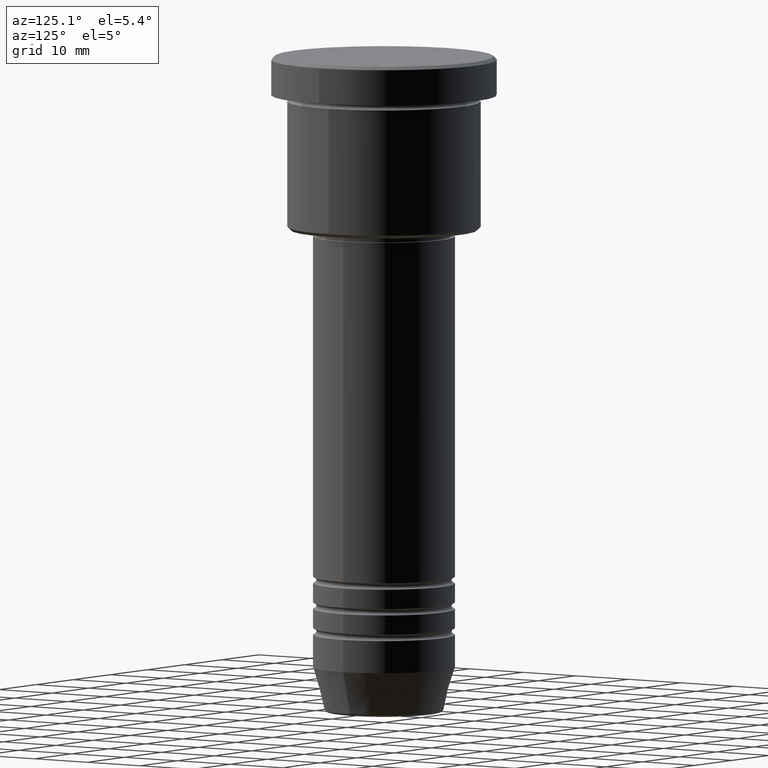
[diagram: clean part render]
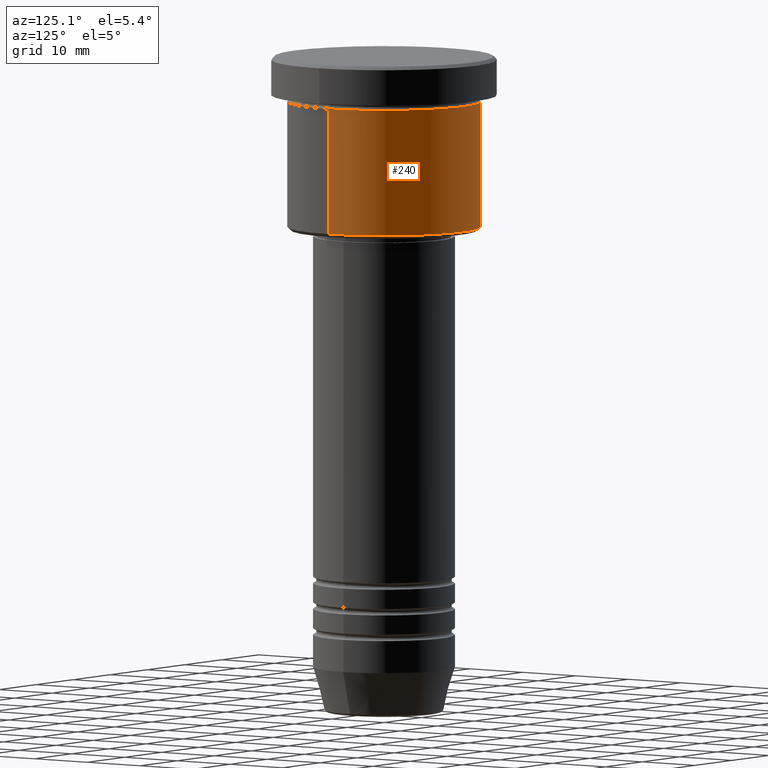
[diagram: same view with one face highlighted and labeled with its STEP entity id]
A machine part, auxiliary view. The second image highlights one B-rep face of the part: STEP entity #240.
In plain terms, the highlighted cylindrical surface (partial cylindrical patch) has radius 15 mm, axis along (-0, -0, 1).
Its self-contained STEP definition (entity closure, byte-faithful):
#15 = DIRECTION ( 'NONE',  ( -0.000000000000000000, -0.000000000000000000, 1.000000000000000000 ) ) ;
#28 = DIRECTION ( 'NONE',  ( -0.000000000000000000, -0.000000000000000000, 1.000000000000000000 ) ) ;
#42 = EDGE_CURVE ( 'NONE', #840, #252, #1114, .T. ) ;
#127 = AXIS2_PLACEMENT_3D ( 'NONE', #1121, #28, #1011 ) ;
#167 = AXIS2_PLACEMENT_3D ( 'NONE', #424, #1072, #616 ) ;
#195 = DIRECTION ( 'NONE',  ( -0.000000000000000000, -0.000000000000000000, 1.000000000000000000 ) ) ;
#200 = VECTOR ( 'NONE', #195, 1000.000000000000000 ) ;
#228 = FACE_OUTER_BOUND ( 'NONE', #412, .T. ) ;
#240 = ADVANCED_FACE ( 'NONE', ( #228 ), #515, .T. ) ;
#248 = ORIENTED_EDGE ( 'NONE', *, *, #483, .T. ) ;
#252 = VERTEX_POINT ( 'NONE', #700 ) ;
#267 = ORIENTED_EDGE ( 'NONE', *, *, #830, .T. ) ;
#293 = CARTESIAN_POINT ( 'NONE',  ( 15.00000000000000000, 0.000000000000000000, -26.49999999999998934 ) ) ;
#308 = ORIENTED_EDGE ( 'NONE', *, *, #42, .F. ) ;
#337 = CIRCLE ( 'NONE', #127, 15.00000000000000000 ) ;
#407 = CARTESIAN_POINT ( 'NONE',  ( 0.000000000000000000, 0.000000000000000000, 0.000000000000000000 ) ) ;
#411 = AXIS2_PLACEMENT_3D ( 'NONE', #407, #597, #1151 ) ;
#412 = EDGE_LOOP ( 'NONE', ( #267, #248, #308, #420 ) ) ;
#420 = ORIENTED_EDGE ( 'NONE', *, *, #905, .F. ) ;
#424 = CARTESIAN_POINT ( 'NONE',  ( 0.000000000000000000, 0.000000000000000000, -6.999999999999995559 ) ) ;
#470 = CARTESIAN_POINT ( 'NONE',  ( 15.00000000000000000, 0.000000000000000000, 0.000000000000000000 ) ) ;
#480 = CARTESIAN_POINT ( 'NONE',  ( -15.00000000000000000, 1.836970198721029589E-15, 0.000000000000000000 ) ) ;
#483 = EDGE_CURVE ( 'NONE', #1153, #252, #931, .T. ) ;
#515 = CYLINDRICAL_SURFACE ( 'NONE', #411, 15.00000000000000000 ) ;
#597 = DIRECTION ( 'NONE',  ( -0.000000000000000000, -0.000000000000000000, 1.000000000000000000 ) ) ;
#616 = DIRECTION ( 'NONE',  ( 1.000000000000000000, 0.000000000000000000, 0.000000000000000000 ) ) ;
#652 = LINE ( 'NONE', #470, #831 ) ;
#700 = CARTESIAN_POINT ( 'NONE',  ( -15.00000000000000000, 1.836970198721029589E-15, -6.999999999999995559 ) ) ;
#738 = CARTESIAN_POINT ( 'NONE',  ( 15.00000000000000000, 0.000000000000000000, -6.999999999999995559 ) ) ;
#830 = EDGE_CURVE ( 'NONE', #865, #1153, #337, .T. ) ;
#831 = VECTOR ( 'NONE', #15, 1000.000000000000000 ) ;
#840 = VERTEX_POINT ( 'NONE', #738 ) ;
#865 = VERTEX_POINT ( 'NONE', #293 ) ;
#905 = EDGE_CURVE ( 'NONE', #865, #840, #652, .T. ) ;
#931 = LINE ( 'NONE', #480, #200 ) ;
#1011 = DIRECTION ( 'NONE',  ( -1.000000000000000000, 0.000000000000000000, 0.000000000000000000 ) ) ;
#1035 = CARTESIAN_POINT ( 'NONE',  ( -15.00000000000000000, 1.836970198721029589E-15, -26.49999999999998934 ) ) ;
#1072 = DIRECTION ( 'NONE',  ( -0.000000000000000000, -0.000000000000000000, 1.000000000000000000 ) ) ;
#1114 = CIRCLE ( 'NONE', #167, 15.00000000000000000 ) ;
#1121 = CARTESIAN_POINT ( 'NONE',  ( 0.000000000000000000, 0.000000000000000000, -26.49999999999998934 ) ) ;
#1151 = DIRECTION ( 'NONE',  ( 1.000000000000000000, 0.000000000000000000, 0.000000000000000000 ) ) ;
#1153 = VERTEX_POINT ( 'NONE', #1035 ) ;